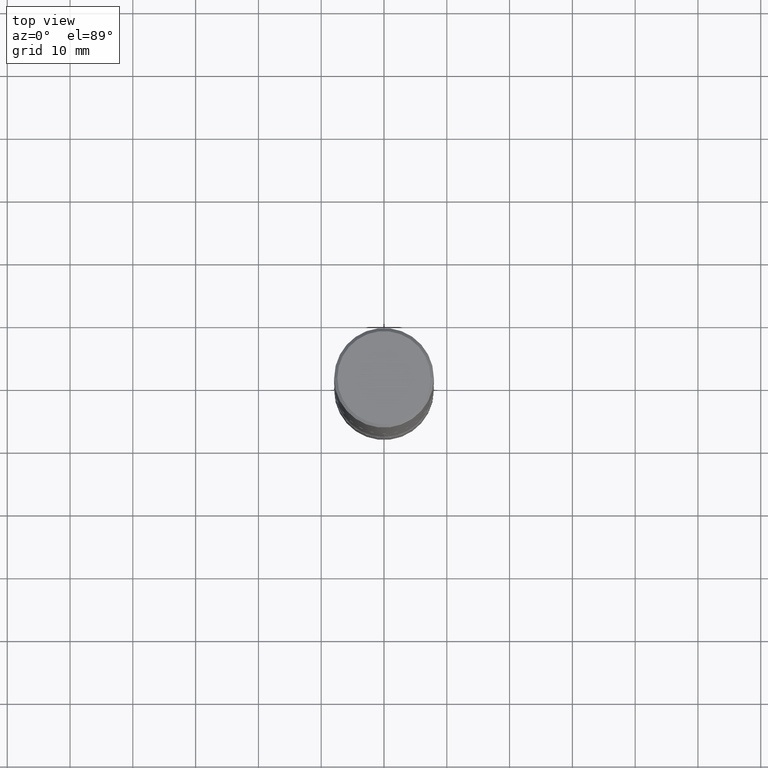
[diagram: clean part render]
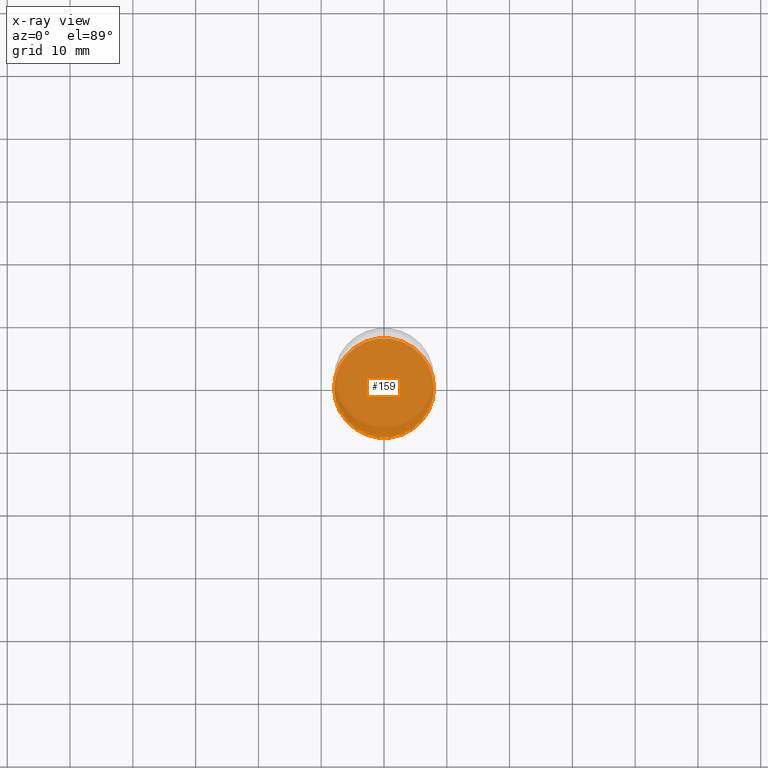
[diagram: x-ray — body ghosted, one internal face saturated and labeled with its STEP entity id]
A machine part, top view, then the same camera in x-ray: the body is ghosted and one INTERNAL B-rep face — a face not visible from any outside direction — is saturated and labeled: STEP entity #159.
In plain terms, the highlighted planar face has unit normal (0, -0, -1).
Its self-contained STEP definition (entity closure, byte-faithful):
#79 = CIRCLE ( 'NONE', #253, 0.3125000000000001665 ) ;
#83 = DIRECTION ( 'NONE',  ( 2.438088387897960049E-29, -3.491481338843145188E-15, -1.000000000000000000 ) ) ;
#106 = CARTESIAN_POINT ( 'NONE',  ( -0.3125000000000001665, -1.211208484670079920E-14, -3.750000000000000000 ) ) ;
#135 = PLANE ( 'NONE',  #284 ) ;
#152 = ORIENTED_EDGE ( 'NONE', *, *, #497, .T. ) ;
#159 = ADVANCED_FACE ( 'NONE', ( #524 ), #135, .F. ) ;
#188 = VERTEX_POINT ( 'NONE', #106 ) ;
#231 = DIRECTION ( 'NONE',  ( 1.000000000000000000, -6.982962677686265133E-15, 0.000000000000000000 ) ) ;
#241 = ORIENTED_EDGE ( 'NONE', *, *, #282, .T. ) ;
#253 = AXIS2_PLACEMENT_3D ( 'NONE', #311, #364, #231 ) ;
#257 = AXIS2_PLACEMENT_3D ( 'NONE', #531, #487, #410 ) ;
#282 = EDGE_CURVE ( 'NONE', #418, #188, #506, .T. ) ;
#284 = AXIS2_PLACEMENT_3D ( 'NONE', #336, #83, #295 ) ;
#295 = DIRECTION ( 'NONE',  ( -1.000000000000000000, 6.982962677686265922E-15, -4.876176775795935793E-29 ) ) ;
#311 = CARTESIAN_POINT ( 'NONE',  ( 9.170508023194262238E-29, -1.309305502066179741E-14, -3.750000000000000000 ) ) ;
#336 = CARTESIAN_POINT ( 'NONE',  ( 9.170508023194262238E-29, -1.309305502066179741E-14, -3.750000000000000000 ) ) ;
#364 = DIRECTION ( 'NONE',  ( -2.445468806185136597E-29, 3.491481338843145583E-15, 1.000000000000000000 ) ) ;
#410 = DIRECTION ( 'NONE',  ( 1.000000000000000000, -6.982962677686265133E-15, 0.000000000000000000 ) ) ;
#418 = VERTEX_POINT ( 'NONE', #433 ) ;
#433 = CARTESIAN_POINT ( 'NONE',  ( 0.3125000000000001665, -1.527523085743875734E-14, -3.750000000000000000 ) ) ;
#467 = EDGE_LOOP ( 'NONE', ( #241, #152 ) ) ;
#487 = DIRECTION ( 'NONE',  ( -2.445468806185136597E-29, 3.491481338843145583E-15, 1.000000000000000000 ) ) ;
#497 = EDGE_CURVE ( 'NONE', #188, #418, #79, .T. ) ;
#506 = CIRCLE ( 'NONE', #257, 0.3125000000000001665 ) ;
#524 = FACE_OUTER_BOUND ( 'NONE', #467, .T. ) ;
#531 = CARTESIAN_POINT ( 'NONE',  ( 9.170508023194262238E-29, -1.309305502066179741E-14, -3.750000000000000000 ) ) ;